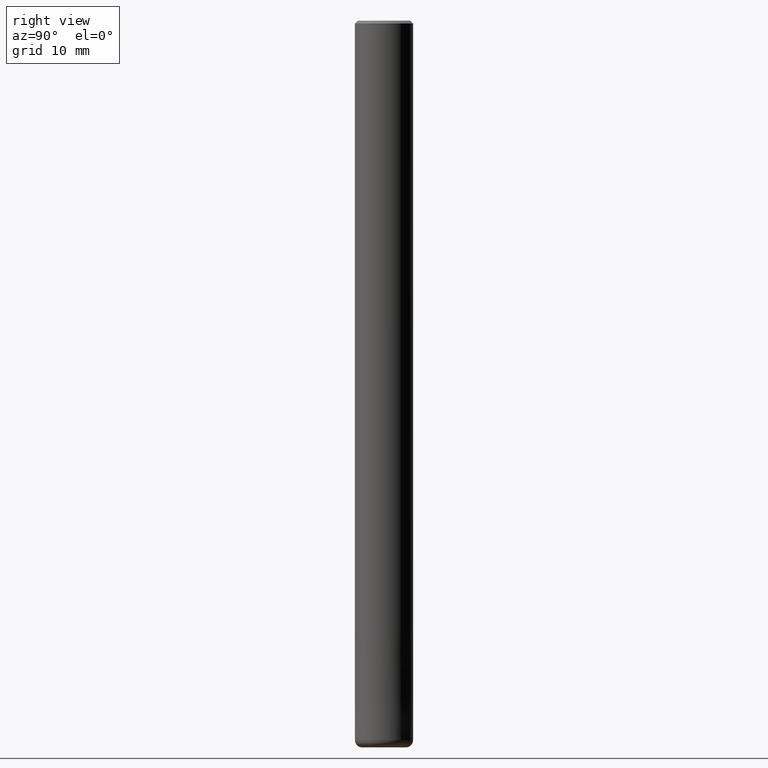
[diagram: clean part render]
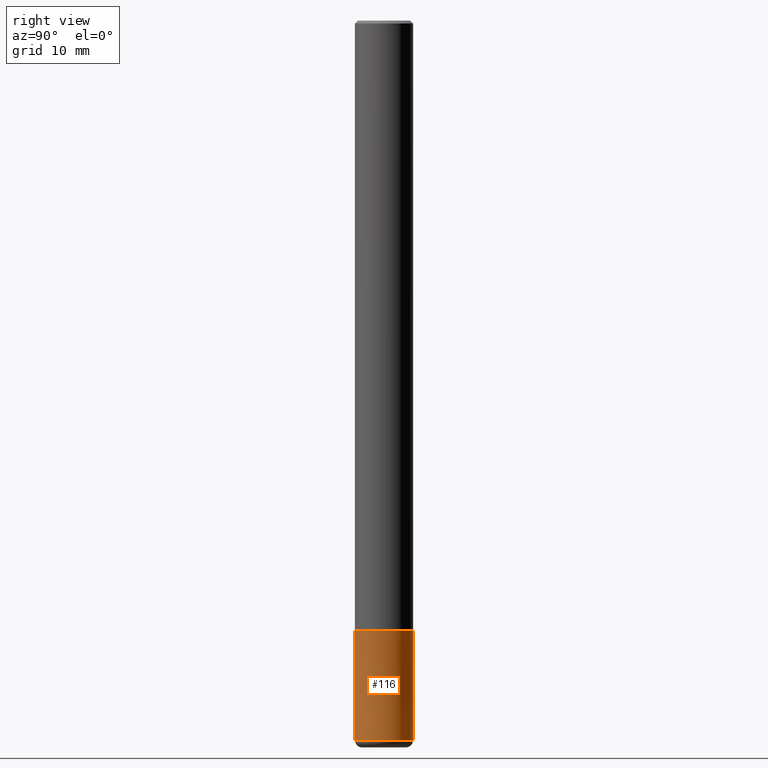
[diagram: same view with one face highlighted and labeled with its STEP entity id]
A machine part, right view. The second image highlights one B-rep face of the part: STEP entity #116.
In plain terms, the highlighted conical surface has half-angle 0 deg.
Its self-contained STEP definition (entity closure, byte-faithful):
#90=EDGE_CURVE('',#142,#154,#196,.T.);
#96=EDGE_CURVE('',#142,#148,#203,.T.);
#98=EDGE_CURVE('',#122,#154,#205,.T.);
#116=ADVANCED_FACE('',(#225),#226,.T.);
#122=VERTEX_POINT('',#233);
#128=EDGE_CURVE('',#148,#122,#239,.T.);
#142=VERTEX_POINT('',#256);
#148=VERTEX_POINT('',#263);
#154=VERTEX_POINT('',#270);
#196=CIRCLE('',#310,3.9999);
#203=LINE('',#319,#320);
#205=LINE('',#323,#324);
#225=FACE_OUTER_BOUND('',#348,.T.);
#226=CONICAL_SURFACE('',#349,3.99995,6.66666666658197E-006);
#233=CARTESIAN_POINT('',(4.89842541528951E-016,-4.0,-99.0));
#239=CIRCLE('',#364,4.0);
#256=CARTESIAN_POINT('',(0.0,3.9999,-84.0));
#263=CARTESIAN_POINT('',(0.0,4.0,-99.0));
#270=CARTESIAN_POINT('',(4.89830295465413E-016,-3.9999,-84.0));
#310=AXIS2_PLACEMENT_3D('',#440,#441,#442);
#319=CARTESIAN_POINT('',(-4.89836418497182E-016,3.99995,-91.5));
#320=VECTOR('',#452,1.0);
#323=CARTESIAN_POINT('',(4.89836418497182E-016,-3.99995,-91.5));
#324=VECTOR('',#453,1.0);
#348=EDGE_LOOP('',(#477,#478,#479,#480));
#349=AXIS2_PLACEMENT_3D('',#481,#482,#483);
#364=AXIS2_PLACEMENT_3D('',#495,#496,#497);
#440=CARTESIAN_POINT('',(0.0,0.0,-84.0));
#441=DIRECTION('',(0.0,0.0,-1.0));
#442=DIRECTION('',(0.0,1.0,0.0));
#452=DIRECTION('',(-8.16404235865165E-022,6.66666666653259E-006,-0.999999999977778));
#453=DIRECTION('',(-8.16404235865165E-022,6.66666666653259E-006,0.999999999977778));
#477=ORIENTED_EDGE('',*,*,#96,.F.);
#478=ORIENTED_EDGE('',*,*,#90,.T.);
#479=ORIENTED_EDGE('',*,*,#98,.F.);
#480=ORIENTED_EDGE('',*,*,#128,.F.);
#481=CARTESIAN_POINT('',(0.0,0.0,-91.5));
#482=DIRECTION('',(0.0,-0.0,-1.0));
#483=DIRECTION('',(0.0,1.0,0.0));
#495=CARTESIAN_POINT('',(0.0,0.0,-99.0));
#496=DIRECTION('',(0.0,0.0,-1.0));
#497=DIRECTION('',(0.0,1.0,0.0));